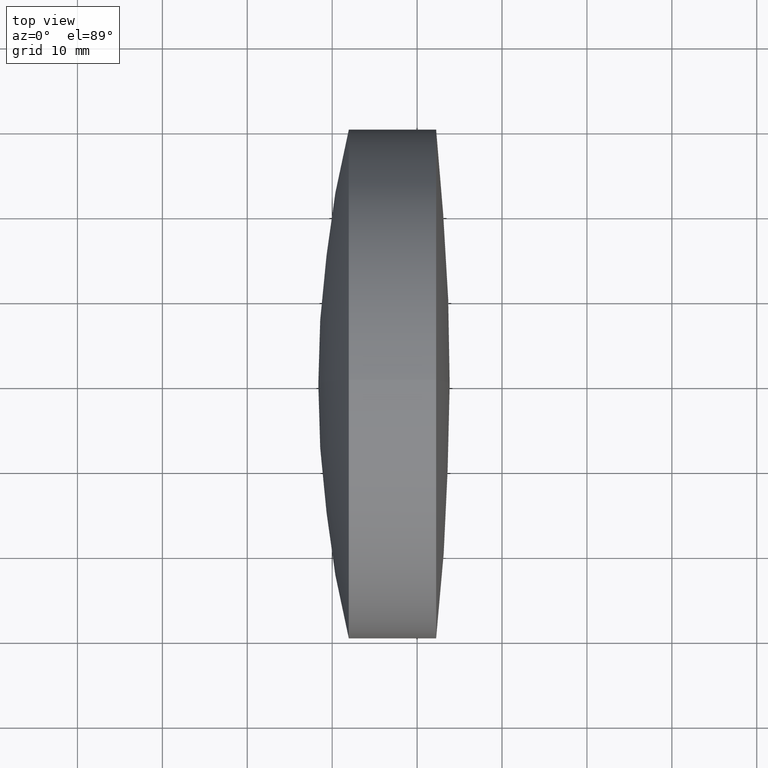
[diagram: clean part render]
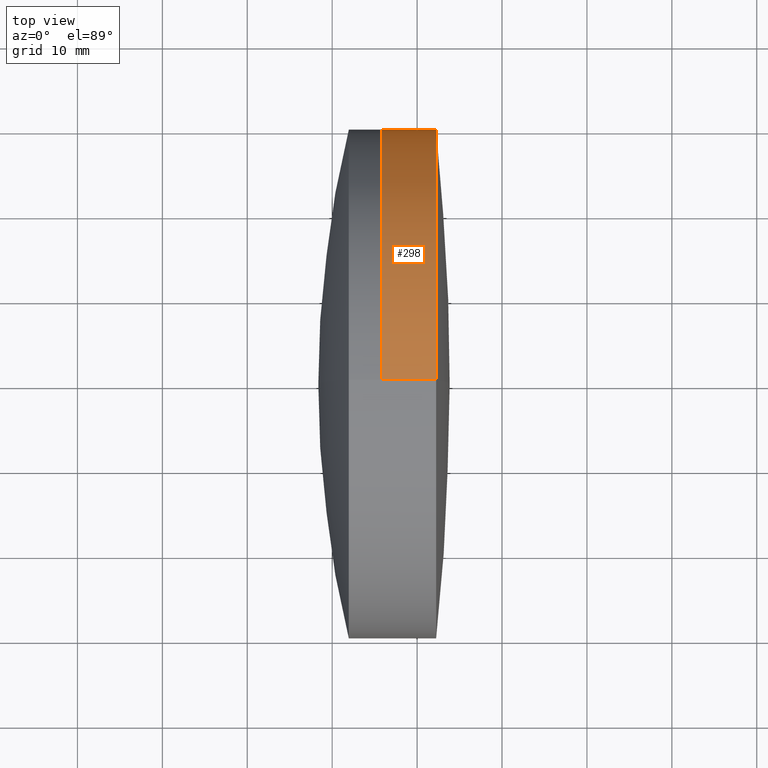
[diagram: same view with one face highlighted and labeled with its STEP entity id]
A machine part, top view. The second image highlights one B-rep face of the part: STEP entity #298.
In plain terms, the highlighted cylindrical surface (partial cylindrical patch) has radius 30 mm, axis along (-1, -0, -0).
Its self-contained STEP definition (entity closure, byte-faithful):
#5 = CARTESIAN_POINT ( 'NONE',  ( 312.2418929441652700, 0.0000000000000000000, 0.0000000000000000000 ) ) ;
#21 = VECTOR ( 'NONE', #86, 1000.000000000000000 ) ;
#27 = CARTESIAN_POINT ( 'NONE',  ( 312.2418929441652700, 3.673940397442056800E-015, -29.99999999999997900 ) ) ;
#46 = LINE ( 'NONE', #151, #21 ) ;
#61 = ORIENTED_EDGE ( 'NONE', *, *, #235, .T. ) ;
#63 = DIRECTION ( 'NONE',  ( -1.000000000000000000, -0.0000000000000000000, -0.0000000000000000000 ) ) ;
#69 = EDGE_CURVE ( 'NONE', #99, #293, #185, .T. ) ;
#72 = DIRECTION ( 'NONE',  ( 0.0000000000000000000, 0.0000000000000000000, 1.000000000000000000 ) ) ;
#75 = VERTEX_POINT ( 'NONE', #170 ) ;
#86 = DIRECTION ( 'NONE',  ( -1.000000000000000000, -0.0000000000000000000, -0.0000000000000000000 ) ) ;
#88 = VERTEX_POINT ( 'NONE', #182 ) ;
#99 = VERTEX_POINT ( 'NONE', #236 ) ;
#100 = CARTESIAN_POINT ( 'NONE',  ( -0.5519199926577972300, 0.0000000000000000000, 0.0000000000000000000 ) ) ;
#105 = DIRECTION ( 'NONE',  ( 0.0000000000000000000, 0.0000000000000000000, 1.000000000000000000 ) ) ;
#123 = VECTOR ( 'NONE', #184, 1000.000000000000000 ) ;
#133 = LINE ( 'NONE', #345, #123 ) ;
#150 = EDGE_CURVE ( 'NONE', #99, #88, #46, .T. ) ;
#151 = CARTESIAN_POINT ( 'NONE',  ( -0.5519199926577972300, 0.0000000000000000000, 29.99999999999998600 ) ) ;
#154 = EDGE_CURVE ( 'NONE', #88, #75, #281, .T. ) ;
#159 = ORIENTED_EDGE ( 'NONE', *, *, #150, .F. ) ;
#170 = CARTESIAN_POINT ( 'NONE',  ( 305.8239199956201400, 3.673940397442058400E-015, -29.99999999999998900 ) ) ;
#182 = CARTESIAN_POINT ( 'NONE',  ( 305.8239199956201400, 0.0000000000000000000, 29.99999999999998900 ) ) ;
#184 = DIRECTION ( 'NONE',  ( -1.000000000000000000, -0.0000000000000000000, -0.0000000000000000000 ) ) ;
#185 = CIRCLE ( 'NONE', #192, 29.99999999999997900 ) ;
#189 = FACE_OUTER_BOUND ( 'NONE', #316, .T. ) ;
#192 = AXIS2_PLACEMENT_3D ( 'NONE', #5, #205, #317 ) ;
#205 = DIRECTION ( 'NONE',  ( -1.000000000000000000, -0.0000000000000000000, -0.0000000000000000000 ) ) ;
#208 = CARTESIAN_POINT ( 'NONE',  ( 305.8239199956201400, 0.0000000000000000000, 0.0000000000000000000 ) ) ;
#227 = CYLINDRICAL_SURFACE ( 'NONE', #314, 29.99999999999998600 ) ;
#235 = EDGE_CURVE ( 'NONE', #293, #75, #133, .T. ) ;
#236 = CARTESIAN_POINT ( 'NONE',  ( 312.2418929441652700, 0.0000000000000000000, 29.99999999999997900 ) ) ;
#240 = DIRECTION ( 'NONE',  ( -1.000000000000000000, -0.0000000000000000000, -0.0000000000000000000 ) ) ;
#254 = ORIENTED_EDGE ( 'NONE', *, *, #69, .T. ) ;
#281 = CIRCLE ( 'NONE', #331, 29.99999999999998900 ) ;
#293 = VERTEX_POINT ( 'NONE', #27 ) ;
#298 = ADVANCED_FACE ( 'NONE', ( #189 ), #227, .T. ) ;
#301 = ORIENTED_EDGE ( 'NONE', *, *, #154, .F. ) ;
#314 = AXIS2_PLACEMENT_3D ( 'NONE', #100, #63, #105 ) ;
#316 = EDGE_LOOP ( 'NONE', ( #254, #61, #301, #159 ) ) ;
#317 = DIRECTION ( 'NONE',  ( 0.0000000000000000000, 0.0000000000000000000, 1.000000000000000000 ) ) ;
#331 = AXIS2_PLACEMENT_3D ( 'NONE', #208, #240, #72 ) ;
#345 = CARTESIAN_POINT ( 'NONE',  ( -0.5519199926577972300, 3.673940397442057600E-015, -29.99999999999998600 ) ) ;